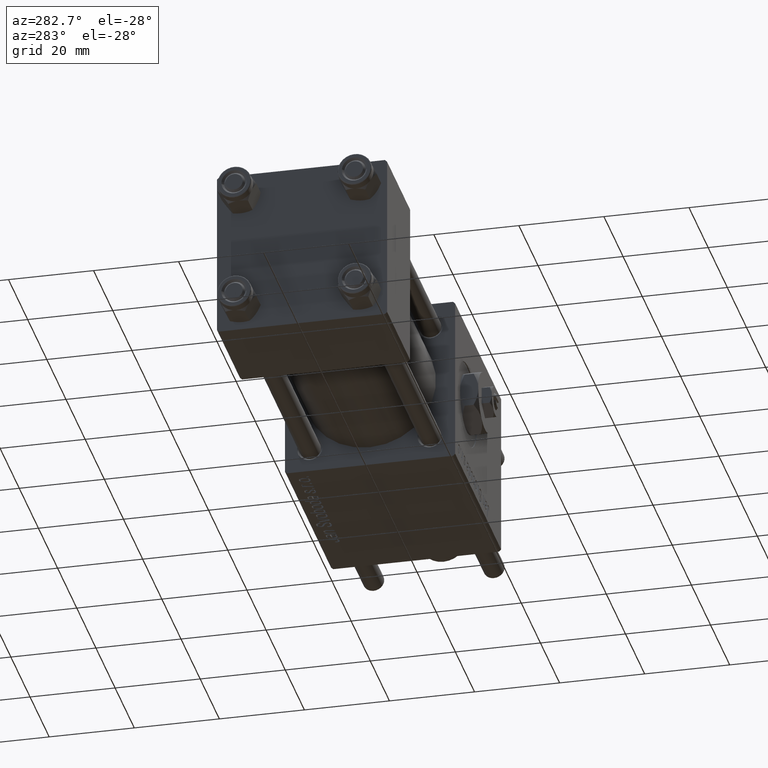
[diagram: clean part render]
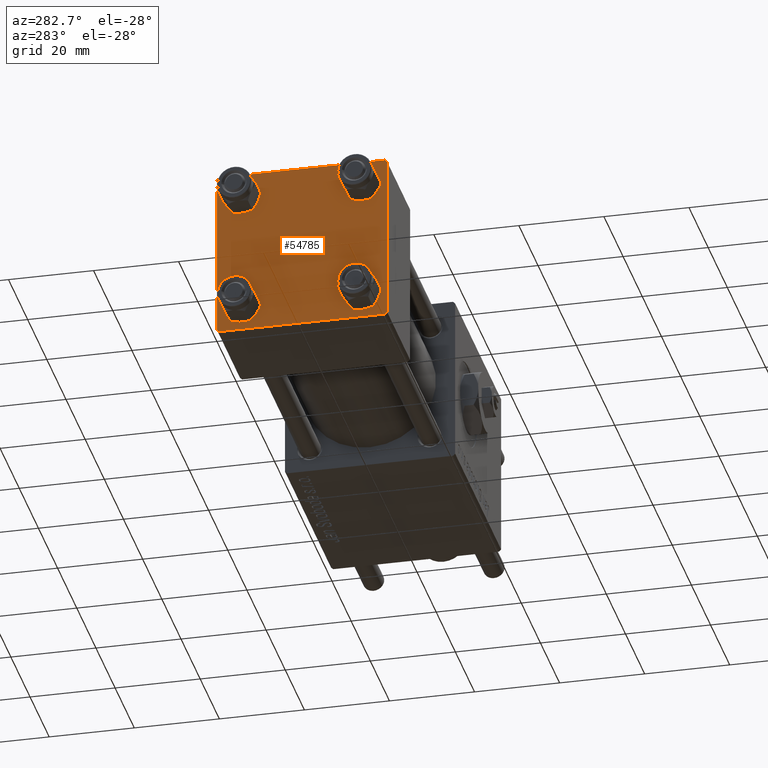
[diagram: same view with one face highlighted and labeled with its STEP entity id]
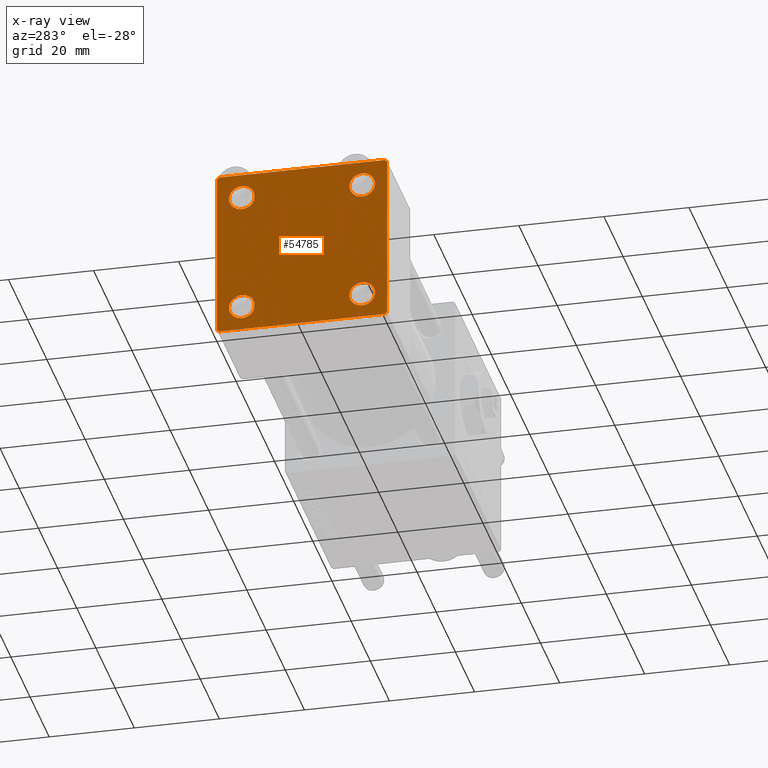
[diagram: x-ray of the same camera — body ghosted, the highlighted face saturated]
A machine part, auxiliary view. The second image highlights one B-rep face of the part: STEP entity #54785.
The next image is the same camera in x-ray: the body ghosted, the highlighted face saturated — about 0% of this face is hidden behind the body in this view.
In plain terms, the highlighted planar face has unit normal (-1, 0, 0).
Its self-contained STEP definition (entity closure, byte-faithful):
#673 = EDGE_CURVE ( 'NONE', #36851, #45251, #16145, .T. ) ;
#1801 = CARTESIAN_POINT ( 'NONE',  ( -0.000000000000000000, 19.74999999999986855, -19.75000000000014211 ) ) ;
#2148 = LINE ( 'NONE', #20072, #13399 ) ;
#2725 = ORIENTED_EDGE ( 'NONE', *, *, #37194, .T. ) ;
#4257 = CARTESIAN_POINT ( 'NONE',  ( 0.000000000000000000, 0.000000000000000000, 0.000000000000000000 ) ) ;
#4344 = EDGE_CURVE ( 'NONE', #54108, #5556, #2148, .T. ) ;
#4348 = ORIENTED_EDGE ( 'NONE', *, *, #5480, .T. ) ;
#5480 = EDGE_CURVE ( 'NONE', #49418, #36987, #39208, .T. ) ;
#5556 = VERTEX_POINT ( 'NONE', #26395 ) ;
#5594 = DIRECTION ( 'NONE',  ( 0.000000000000000000, 0.000000000000000000, -1.000000000000000000 ) ) ;
#5854 = CARTESIAN_POINT ( 'NONE',  ( 0.000000000000000000, -14.14999999999999503, 14.15000000000000391 ) ) ;
#6903 = DIRECTION ( 'NONE',  ( 1.000000000000000000, 0.000000000000000000, 0.000000000000000000 ) ) ;
#7167 = LINE ( 'NONE', #1801, #26237 ) ;
#8428 = VERTEX_POINT ( 'NONE', #21969 ) ;
#9260 = CIRCLE ( 'NONE', #29290, 2.999999999999983569 ) ;
#9321 = FACE_BOUND ( 'NONE', #29764, .T. ) ;
#9570 = DIRECTION ( 'NONE',  ( 1.000000000000000000, 0.000000000000000000, 0.000000000000000000 ) ) ;
#9875 = EDGE_CURVE ( 'NONE', #8428, #31474, #37403, .T. ) ;
#10171 = ORIENTED_EDGE ( 'NONE', *, *, #9875, .T. ) ;
#10243 = VERTEX_POINT ( 'NONE', #10858 ) ;
#10323 = LINE ( 'NONE', #52143, #13343 ) ;
#10858 = CARTESIAN_POINT ( 'NONE',  ( 0.000000000000000000, 19.50000000000000711, -20.00000000000000711 ) ) ;
#10980 = CARTESIAN_POINT ( 'NONE',  ( 0.000000000000000000, 14.14999999999999858, 17.14999999999998437 ) ) ;
#11200 = DIRECTION ( 'NONE',  ( 1.000000000000000000, 0.000000000000000000, 0.000000000000000000 ) ) ;
#11309 = ORIENTED_EDGE ( 'NONE', *, *, #26962, .T. ) ;
#11543 = ORIENTED_EDGE ( 'NONE', *, *, #673, .T. ) ;
#12295 = CARTESIAN_POINT ( 'NONE',  ( -0.000000000000000000, 19.75000000000013500, 19.74999999999986144 ) ) ;
#12704 = EDGE_CURVE ( 'NONE', #56727, #31924, #34999, .T. ) ;
#12930 = DIRECTION ( 'NONE',  ( -1.000000000000000000, 0.000000000000000000, -0.000000000000000000 ) ) ;
#13343 = VECTOR ( 'NONE', #47069, 1000.000000000000000 ) ;
#13399 = VECTOR ( 'NONE', #38285, 1000.000000000000000 ) ;
#15114 = DIRECTION ( 'NONE',  ( 1.000000000000000000, 0.000000000000000000, 0.000000000000000000 ) ) ;
#15323 = VERTEX_POINT ( 'NONE', #10980 ) ;
#15778 = VERTEX_POINT ( 'NONE', #19136 ) ;
#16145 = CIRCLE ( 'NONE', #25697, 2.999999999999983569 ) ;
#16318 = AXIS2_PLACEMENT_3D ( 'NONE', #30295, #35066, #53290 ) ;
#16784 = CARTESIAN_POINT ( 'NONE',  ( 0.000000000000000000, -14.14999999999999503, 14.15000000000000391 ) ) ;
#17101 = CARTESIAN_POINT ( 'NONE',  ( 0.000000000000000000, -19.49999999999999289, 19.99999999999998934 ) ) ;
#17958 = DIRECTION ( 'NONE',  ( 0.000000000000000000, 0.7071067811865425767, -0.7071067811865525687 ) ) ;
#17994 = FACE_BOUND ( 'NONE', #40537, .T. ) ;
#18435 = VECTOR ( 'NONE', #17958, 999.9999999999998863 ) ;
#18562 = VECTOR ( 'NONE', #5594, 1000.000000000000000 ) ;
#18587 = FACE_BOUND ( 'NONE', #35632, .T. ) ;
#19047 = CIRCLE ( 'NONE', #21916, 2.999999999999983569 ) ;
#19136 = CARTESIAN_POINT ( 'NONE',  ( 0.000000000000000000, 14.14999999999999858, 11.15000000000001990 ) ) ;
#19868 = CARTESIAN_POINT ( 'NONE',  ( 0.000000000000000000, -14.14999999999999503, -17.15000000000000924 ) ) ;
#20072 = CARTESIAN_POINT ( 'NONE',  ( 0.000000000000000000, -20.00000000000000355, 19.99999999999998934 ) ) ;
#20994 = VECTOR ( 'NONE', #35315, 1000.000000000000000 ) ;
#21538 = CARTESIAN_POINT ( 'NONE',  ( 0.000000000000000000, 14.14999999999999858, 14.15000000000000036 ) ) ;
#21729 = LINE ( 'NONE', #57596, #39353 ) ;
#21895 = FACE_OUTER_BOUND ( 'NONE', #27322, .T. ) ;
#21916 = AXIS2_PLACEMENT_3D ( 'NONE', #21538, #6903, #34972 ) ;
#21917 = CARTESIAN_POINT ( 'NONE',  ( 0.000000000000000000, -14.14999999999999503, -11.15000000000000036 ) ) ;
#21969 = CARTESIAN_POINT ( 'NONE',  ( 0.000000000000000000, -14.14999999999999503, 17.14999999999998792 ) ) ;
#23578 = AXIS2_PLACEMENT_3D ( 'NONE', #50495, #9570, #46022 ) ;
#24288 = CARTESIAN_POINT ( 'NONE',  ( 0.000000000000000000, -14.14999999999999503, 11.15000000000002345 ) ) ;
#24792 = DIRECTION ( 'NONE',  ( -0.000000000000000000, -0.7071067811865524577, -0.7071067811865426878 ) ) ;
#25697 = AXIS2_PLACEMENT_3D ( 'NONE', #39447, #26291, #57680 ) ;
#25925 = ORIENTED_EDGE ( 'NONE', *, *, #4344, .F. ) ;
#26237 = VECTOR ( 'NONE', #24792, 1000.000000000000000 ) ;
#26265 = EDGE_CURVE ( 'NONE', #31924, #41852, #33675, .T. ) ;
#26291 = DIRECTION ( 'NONE',  ( 1.000000000000000000, 0.000000000000000000, 0.000000000000000000 ) ) ;
#26395 = CARTESIAN_POINT ( 'NONE',  ( 0.000000000000000000, -20.00000000000000000, -19.49999999999999645 ) ) ;
#26962 = EDGE_CURVE ( 'NONE', #41852, #10243, #7167, .T. ) ;
#27322 = EDGE_LOOP ( 'NONE', ( #56245, #11309, #31190, #56418, #25925, #45700, #32871, #42499 ) ) ;
#27461 = CARTESIAN_POINT ( 'NONE',  ( 0.000000000000000000, 20.00000000000000000, 19.49999999999999289 ) ) ;
#27801 = AXIS2_PLACEMENT_3D ( 'NONE', #4257, #12930, #36216 ) ;
#29022 = CARTESIAN_POINT ( 'NONE',  ( 0.000000000000000000, 19.50000000000000000, 20.00000000000000000 ) ) ;
#29290 = AXIS2_PLACEMENT_3D ( 'NONE', #16784, #43971, #48736 ) ;
#29577 = LINE ( 'NONE', #30173, #53065 ) ;
#29764 = EDGE_LOOP ( 'NONE', ( #55358, #43626 ) ) ;
#30173 = CARTESIAN_POINT ( 'NONE',  ( -0.000000000000000000, -19.74999999999992539, 19.75000000000006395 ) ) ;
#30295 = CARTESIAN_POINT ( 'NONE',  ( 0.000000000000000000, -14.14999999999999503, -14.15000000000000391 ) ) ;
#31190 = ORIENTED_EDGE ( 'NONE', *, *, #57541, .T. ) ;
#31474 = VERTEX_POINT ( 'NONE', #24288 ) ;
#31924 = VERTEX_POINT ( 'NONE', #27461 ) ;
#32027 = PLANE ( 'NONE',  #27801 ) ;
#32400 = AXIS2_PLACEMENT_3D ( 'NONE', #42270, #11200, #37797 ) ;
#32667 = AXIS2_PLACEMENT_3D ( 'NONE', #5854, #15114, #33333 ) ;
#32871 = ORIENTED_EDGE ( 'NONE', *, *, #50725, .F. ) ;
#33333 = DIRECTION ( 'NONE',  ( 0.000000000000000000, 0.000000000000000000, 1.000000000000000000 ) ) ;
#33667 = CARTESIAN_POINT ( 'NONE',  ( 0.000000000000000000, 14.14999999999999858, -17.14999999999998437 ) ) ;
#33675 = LINE ( 'NONE', #55786, #18562 ) ;
#34327 = CIRCLE ( 'NONE', #32400, 3.000000000000004441 ) ;
#34386 = DIRECTION ( 'NONE',  ( 0.000000000000000000, 0.000000000000000000, 1.000000000000000000 ) ) ;
#34842 = EDGE_CURVE ( 'NONE', #54108, #47903, #29577, .T. ) ;
#34972 = DIRECTION ( 'NONE',  ( 0.000000000000000000, 0.000000000000000000, 1.000000000000000000 ) ) ;
#34999 = LINE ( 'NONE', #12295, #18435 ) ;
#35066 = DIRECTION ( 'NONE',  ( 1.000000000000000000, 0.000000000000000000, 0.000000000000000000 ) ) ;
#35164 = DIRECTION ( 'NONE',  ( 0.000000000000000000, -1.000000000000000000, 1.734723475976807094E-16 ) ) ;
#35315 = DIRECTION ( 'NONE',  ( 0.000000000000000000, -1.000000000000000000, -2.602085213965210149E-16 ) ) ;
#35632 = EDGE_LOOP ( 'NONE', ( #45398, #4348 ) ) ;
#36216 = DIRECTION ( 'NONE',  ( -0.000000000000000000, 0.000000000000000000, 1.000000000000000000 ) ) ;
#36694 = EDGE_LOOP ( 'NONE', ( #55740, #11543 ) ) ;
#36851 = VERTEX_POINT ( 'NONE', #33667 ) ;
#36984 = CARTESIAN_POINT ( 'NONE',  ( 0.000000000000000000, -20.00000000000000355, 19.49999999999998224 ) ) ;
#36987 = VERTEX_POINT ( 'NONE', #21917 ) ;
#37194 = EDGE_CURVE ( 'NONE', #31474, #8428, #9260, .T. ) ;
#37347 = EDGE_CURVE ( 'NONE', #15778, #15323, #50271, .T. ) ;
#37403 = CIRCLE ( 'NONE', #32667, 2.999999999999983569 ) ;
#37602 = CARTESIAN_POINT ( 'NONE',  ( 0.000000000000000000, -19.50000000000000711, -20.00000000000000000 ) ) ;
#37797 = DIRECTION ( 'NONE',  ( 0.000000000000000000, 0.000000000000000000, 1.000000000000000000 ) ) ;
#38285 = DIRECTION ( 'NONE',  ( 0.000000000000000000, 8.673617379884036705E-17, -1.000000000000000000 ) ) ;
#38929 = CARTESIAN_POINT ( 'NONE',  ( 0.000000000000000000, 20.00000000000000000, 20.00000000000000000 ) ) ;
#39164 = DIRECTION ( 'NONE',  ( 1.000000000000000000, 0.000000000000000000, 0.000000000000000000 ) ) ;
#39208 = CIRCLE ( 'NONE', #16318, 3.000000000000004441 ) ;
#39283 = CARTESIAN_POINT ( 'NONE',  ( 0.000000000000000000, 14.14999999999999858, -11.15000000000001812 ) ) ;
#39353 = VECTOR ( 'NONE', #35164, 1000.000000000000000 ) ;
#39447 = CARTESIAN_POINT ( 'NONE',  ( 0.000000000000000000, 14.14999999999999858, -14.15000000000000036 ) ) ;
#40537 = EDGE_LOOP ( 'NONE', ( #10171, #2725 ) ) ;
#41852 = VERTEX_POINT ( 'NONE', #50999 ) ;
#42270 = CARTESIAN_POINT ( 'NONE',  ( 0.000000000000000000, -14.14999999999999503, -14.15000000000000391 ) ) ;
#42499 = ORIENTED_EDGE ( 'NONE', *, *, #12704, .T. ) ;
#43626 = ORIENTED_EDGE ( 'NONE', *, *, #37347, .T. ) ;
#43971 = DIRECTION ( 'NONE',  ( 1.000000000000000000, 0.000000000000000000, 0.000000000000000000 ) ) ;
#45251 = VERTEX_POINT ( 'NONE', #39283 ) ;
#45398 = ORIENTED_EDGE ( 'NONE', *, *, #49319, .T. ) ;
#45700 = ORIENTED_EDGE ( 'NONE', *, *, #34842, .T. ) ;
#45981 = EDGE_CURVE ( 'NONE', #48264, #5556, #10323, .T. ) ;
#46022 = DIRECTION ( 'NONE',  ( 0.000000000000000000, 0.000000000000000000, 1.000000000000000000 ) ) ;
#47069 = DIRECTION ( 'NONE',  ( 0.000000000000000000, -0.7071067811865401342, 0.7071067811865549002 ) ) ;
#47903 = VERTEX_POINT ( 'NONE', #17101 ) ;
#48103 = DIRECTION ( 'NONE',  ( -0.000000000000000000, 0.7071067811865500152, 0.7071067811865451302 ) ) ;
#48264 = VERTEX_POINT ( 'NONE', #37602 ) ;
#48736 = DIRECTION ( 'NONE',  ( 0.000000000000000000, 0.000000000000000000, 1.000000000000000000 ) ) ;
#48924 = EDGE_CURVE ( 'NONE', #15323, #15778, #19047, .T. ) ;
#48991 = EDGE_CURVE ( 'NONE', #45251, #36851, #50521, .T. ) ;
#49319 = EDGE_CURVE ( 'NONE', #36987, #49418, #34327, .T. ) ;
#49418 = VERTEX_POINT ( 'NONE', #19868 ) ;
#50271 = CIRCLE ( 'NONE', #23578, 2.999999999999983569 ) ;
#50495 = CARTESIAN_POINT ( 'NONE',  ( 0.000000000000000000, 14.14999999999999858, 14.15000000000000036 ) ) ;
#50521 = CIRCLE ( 'NONE', #52447, 2.999999999999983569 ) ;
#50725 = EDGE_CURVE ( 'NONE', #56727, #47903, #53248, .T. ) ;
#50999 = CARTESIAN_POINT ( 'NONE',  ( 0.000000000000000000, 20.00000000000000000, -19.50000000000002132 ) ) ;
#52143 = CARTESIAN_POINT ( 'NONE',  ( 0.000000000000000000, -19.75000000000020961, -19.74999999999979394 ) ) ;
#52447 = AXIS2_PLACEMENT_3D ( 'NONE', #52907, #39164, #34386 ) ;
#52907 = CARTESIAN_POINT ( 'NONE',  ( 0.000000000000000000, 14.14999999999999858, -14.15000000000000036 ) ) ;
#53065 = VECTOR ( 'NONE', #48103, 1000.000000000000114 ) ;
#53248 = LINE ( 'NONE', #38929, #20994 ) ;
#53290 = DIRECTION ( 'NONE',  ( 0.000000000000000000, 0.000000000000000000, 1.000000000000000000 ) ) ;
#54108 = VERTEX_POINT ( 'NONE', #36984 ) ;
#54434 = FACE_BOUND ( 'NONE', #36694, .T. ) ;
#54785 = ADVANCED_FACE ( 'NONE', ( #17994, #18587, #54434, #9321, #21895 ), #32027, .T. ) ;
#55358 = ORIENTED_EDGE ( 'NONE', *, *, #48924, .T. ) ;
#55740 = ORIENTED_EDGE ( 'NONE', *, *, #48991, .T. ) ;
#55786 = CARTESIAN_POINT ( 'NONE',  ( 0.000000000000000000, 20.00000000000000000, 20.00000000000000000 ) ) ;
#56245 = ORIENTED_EDGE ( 'NONE', *, *, #26265, .T. ) ;
#56418 = ORIENTED_EDGE ( 'NONE', *, *, #45981, .T. ) ;
#56727 = VERTEX_POINT ( 'NONE', #29022 ) ;
#57541 = EDGE_CURVE ( 'NONE', #10243, #48264, #21729, .T. ) ;
#57596 = CARTESIAN_POINT ( 'NONE',  ( 0.000000000000000000, 20.00000000000000000, -20.00000000000000711 ) ) ;
#57680 = DIRECTION ( 'NONE',  ( 0.000000000000000000, 0.000000000000000000, 1.000000000000000000 ) ) ;